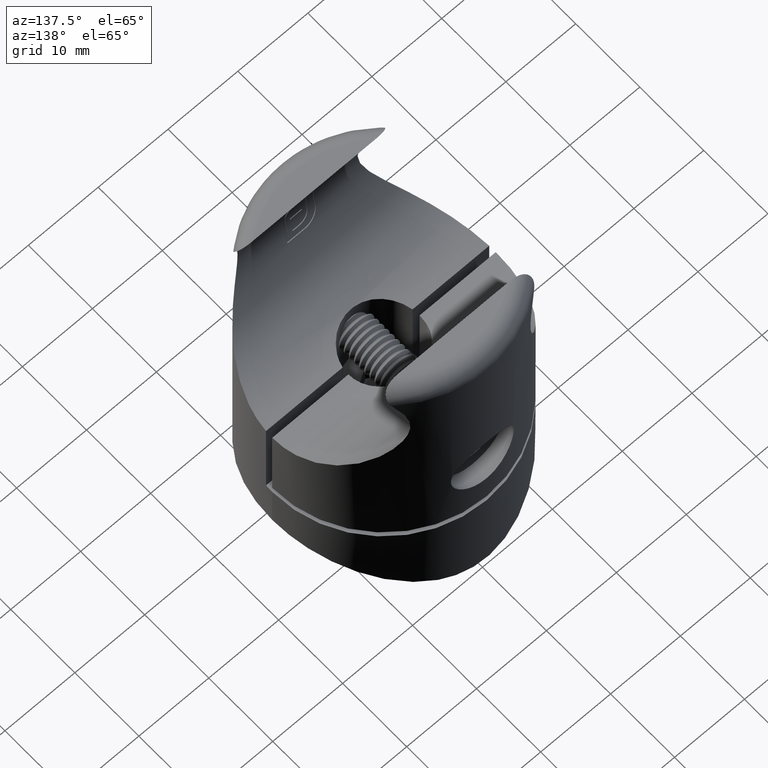
[diagram: clean part render]
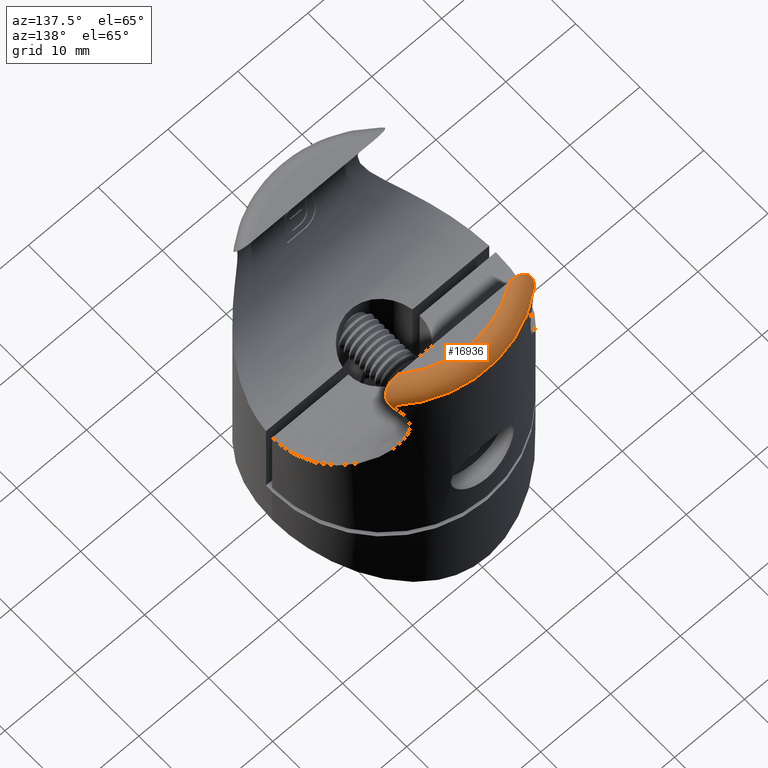
[diagram: same view with one face highlighted and labeled with its STEP entity id]
A machine part, auxiliary view. The second image highlights one B-rep face of the part: STEP entity #16936.
In plain terms, the highlighted toroidal blend (fillet) surface has major radius 13.5 mm and minor (blend) radius 2.5 mm.
Its self-contained STEP definition (entity closure, byte-faithful):
#124 = CARTESIAN_POINT ( 'NONE',  ( 10.45382344293711974, 11.75001573840879310, 33.65003368461374578 ) ) ;
#223 = CARTESIAN_POINT ( 'NONE',  ( 10.28710297064925783, 11.47149615864221417, 34.11769990449707279 ) ) ;
#1078 = VERTEX_POINT ( 'NONE', #20932 ) ;
#1876 = CARTESIAN_POINT ( 'NONE',  ( -8.380203658493739383, 10.87984127651835919, 34.99246987365486206 ) ) ;
#1926 = CARTESIAN_POINT ( 'NONE',  ( 0.000000000000000000, 0.000000000000000000, 32.50000000000000000 ) ) ;
#2012 = DIRECTION ( 'NONE',  ( 1.000000000000000000, -3.552713678800500929E-15, 0.000000000000000000 ) ) ;
#2279 = CARTESIAN_POINT ( 'NONE',  ( 10.19311573678107585, 11.38319484650541469, 34.25808178065755527 ) ) ;
#2611 = DIRECTION ( 'NONE',  ( 1.000000000000000000, 0.000000000000000000, 0.000000000000000000 ) ) ;
#3533 = EDGE_LOOP ( 'NONE', ( #6540, #27816, #12035, #17487 ) ) ;
#3596 = CIRCLE ( 'NONE', #4294, 13.50000000000000000 ) ;
#3861 = CARTESIAN_POINT ( 'NONE',  ( -9.951302772266025443, 11.21798280207964282, 34.51185936491668116 ) ) ;
#3959 = CARTESIAN_POINT ( 'NONE',  ( -8.000000000000008882, 10.87428158546576640, 35.00000000000000000 ) ) ;
#4294 = AXIS2_PLACEMENT_3D ( 'NONE', #8537, #18570, #23372 ) ;
#4468 = CARTESIAN_POINT ( 'NONE',  ( 10.13809998941080615, 11.34023300766234321, 34.32491859691874936 ) ) ;
#4563 = CARTESIAN_POINT ( 'NONE',  ( 10.46272518380615679, 11.93181473263891590, 33.31803886070136400 ) ) ;
#5855 = TOROIDAL_SURFACE ( 'NONE', #12745, 13.50000000000000000, 2.500000000000000000 ) ;
#6144 = CARTESIAN_POINT ( 'NONE',  ( -10.35006038148496721, 12.18231821499962209, 32.82024750358393561 ) ) ;
#6540 = ORIENTED_EDGE ( 'NONE', *, *, #10954, .F. ) ;
#6554 = CARTESIAN_POINT ( 'NONE',  ( 10.43939368969924608, 12.02030870588126454, 33.14785711796219658 ) ) ;
#7208 = VERTEX_POINT ( 'NONE', #27648 ) ;
#7956 = CARTESIAN_POINT ( 'NONE',  ( -10.28410146709938999, 11.46830415123831592, 34.12283697615158928 ) ) ;
#8262 = EDGE_CURVE ( 'NONE', #11859, #1078, #3596, .T. ) ;
#8537 = CARTESIAN_POINT ( 'NONE',  ( 0.000000000000000000, 0.000000000000000000, 35.00000000000000000 ) ) ;
#8633 = CARTESIAN_POINT ( 'NONE',  ( 9.956134402928984883, 11.22055002216527519, 34.50803074569692797 ) ) ;
#9014 = CARTESIAN_POINT ( 'NONE',  ( 10.42079775777834172, 11.65414308983838332, 33.81634039725183527 ) ) ;
#10130 = CARTESIAN_POINT ( 'NONE',  ( -10.41995829387336769, 11.65198373552895461, 33.82006076076333301 ) ) ;
#10168 = EDGE_CURVE ( 'NONE', #1078, #14529, #18651, .T. ) ;
#10498 = CARTESIAN_POINT ( 'NONE',  ( -9.479278755680093482, 11.03598398791453050, 34.77603524895889819 ) ) ;
#10814 = CARTESIAN_POINT ( 'NONE',  ( 9.483114144574628313, 11.03698917256719092, 34.77462169553056981 ) ) ;
#10954 = EDGE_CURVE ( 'NONE', #7208, #11859, #25935, .T. ) ;
#10992 = CARTESIAN_POINT ( 'NONE',  ( 10.34898759336921081, 12.18366177107275128, 32.81741818813670619 ) ) ;
#11701 = DIRECTION ( 'NONE',  ( 0.000000000000000000, 0.000000000000000000, 1.000000000000000000 ) ) ;
#11859 = VERTEX_POINT ( 'NONE', #26396 ) ;
#12035 = ORIENTED_EDGE ( 'NONE', *, *, #10168, .F. ) ;
#12306 = CARTESIAN_POINT ( 'NONE',  ( -10.44010292599901746, 12.01842050669649353, 33.15156294113162261 ) ) ;
#12396 = CARTESIAN_POINT ( 'NONE',  ( -8.189671559391934252, 10.87428158546576107, 35.00000000000001421 ) ) ;
#12486 = CARTESIAN_POINT ( 'NONE',  ( -9.802303870556524856, 11.14807219007156291, 34.61446998940242281 ) ) ;
#12745 = AXIS2_PLACEMENT_3D ( 'NONE', #24249, #11701, #2611 ) ;
#12981 = CARTESIAN_POINT ( 'NONE',  ( 9.305066866814756921, 10.99295583792956421, 34.83632548820178698 ) ) ;
#14474 = CARTESIAN_POINT ( 'NONE',  ( -10.19803902718557609, 12.32882800593794848, 32.50000000000000000 ) ) ;
#14529 = VERTEX_POINT ( 'NONE', #18429 ) ;
#14562 = CARTESIAN_POINT ( 'NONE',  ( -9.306404128155969957, 10.99326114737997351, 34.83589762402444023 ) ) ;
#16916 = CARTESIAN_POINT ( 'NONE',  ( -10.18970742592433787, 11.38039105875430934, 34.26247244703667860 ) ) ;
#16936 = ADVANCED_FACE ( 'NONE', ( #23402 ), #5855, .T. ) ;
#17005 = CARTESIAN_POINT ( 'NONE',  ( -8.756217974099538282, 10.90680287860542208, 34.95563774004056512 ) ) ;
#17047 = DIRECTION ( 'NONE',  ( -0.000000000000000000, -0.000000000000000000, -1.000000000000000000 ) ) ;
#17237 = EDGE_CURVE ( 'NONE', #14529, #7208, #17623, .T. ) ;
#17316 = CARTESIAN_POINT ( 'NONE',  ( 8.761121662331193605, 10.89583206529706239, 34.97139538924530910 ) ) ;
#17413 = CARTESIAN_POINT ( 'NONE',  ( 10.28256871834815911, 12.25890756508040980, 32.65673401626036565 ) ) ;
#17487 = ORIENTED_EDGE ( 'NONE', *, *, #8262, .F. ) ;
#17502 = CARTESIAN_POINT ( 'NONE',  ( 8.000000000019962698, 10.87428158546576640, 35.00000000000000000 ) ) ;
#17623 = CIRCLE ( 'NONE', #17996, 16.00000000000000000 ) ;
#17996 = AXIS2_PLACEMENT_3D ( 'NONE', #1926, #17047, #2012 ) ;
#18429 = CARTESIAN_POINT ( 'NONE',  ( -10.19803902718557609, 12.32882800593794848, 32.50000000000000000 ) ) ;
#18570 = DIRECTION ( 'NONE',  ( 0.000000000000000000, 0.000000000000000000, 1.000000000000000000 ) ) ;
#18651 = B_SPLINE_CURVE_WITH_KNOTS ( 'NONE', 3,
 ( #3959, #12396, #1876, #17005, #23165, #14562, #10498, #12486, #3861, #19012, #16916, #7956, #19106, #10130, #21267, #25233, #12306, #6144, #27393, #14474 ),
 .UNSPECIFIED., .F., .F.,
 ( 4, 2, 2, 2, 2, 2, 2, 2, 2, 4 ),
 ( 0.02071179075917638918, 0.02126964114488872834, 0.02182749153060106750, 0.02238534191631340320, 0.02294319230202574236, 0.02322211749488191021, 0.02350104268773807806, 0.02405889307345041028, 0.02461674345916274251, 0.02517459384487507473 ),
 .UNSPECIFIED. ) ;
#19012 = CARTESIAN_POINT ( 'NONE',  ( -10.13431468010807457, 11.33745329032614713, 34.32921859451531077 ) ) ;
#19106 = CARTESIAN_POINT ( 'NONE',  ( -10.32360957926437273, 11.51348498951177568, 34.04965615010198832 ) ) ;
#19589 = CARTESIAN_POINT ( 'NONE',  ( 10.32610642018201119, 11.51661938380241601, 34.04452729862232729 ) ) ;
#19678 = CARTESIAN_POINT ( 'NONE',  ( 10.19803902718557786, 12.32882800593795025, 32.50000000000000000 ) ) ;
#20932 = CARTESIAN_POINT ( 'NONE',  ( -8.000000000000008882, 10.87428158546576640, 35.00000000000000000 ) ) ;
#21267 = CARTESIAN_POINT ( 'NONE',  ( -10.45324396519880494, 11.74723290712105950, 33.65498094952530295 ) ) ;
#21662 = CARTESIAN_POINT ( 'NONE',  ( 8.377276848527850817, 10.87428158546655332, 34.99999999999894840 ) ) ;
#23165 = CARTESIAN_POINT ( 'NONE',  ( -8.944119976557894702, 10.92844122370847515, 34.92604911974655835 ) ) ;
#23372 = DIRECTION ( 'NONE',  ( 1.000000000000000000, 0.000000000000000000, 0.000000000000000000 ) ) ;
#23402 = FACE_OUTER_BOUND ( 'NONE', #3533, .T. ) ;
#23738 = CARTESIAN_POINT ( 'NONE',  ( 9.807557994757644337, 11.15023026666497152, 34.61132297989833262 ) ) ;
#24249 = CARTESIAN_POINT ( 'NONE',  ( 0.000000000000000000, 0.000000000000000000, 32.50000000000000000 ) ) ;
#25233 = CARTESIAN_POINT ( 'NONE',  ( -10.46308104471603961, 11.93024349507482285, 33.32103967405022615 ) ) ;
#25935 = B_SPLINE_CURVE_WITH_KNOTS ( 'NONE', 3,
 ( #19678, #17413, #10992, #6554, #4563, #124, #9014, #19589, #223, #2279, #4468, #8633, #23738, #10814, #12981, #17316, #21662, #17502 ),
 .UNSPECIFIED., .F., .F.,
 ( 4, 2, 2, 2, 2, 2, 2, 2, 4 ),
 ( 2.415007347416912722E-07, 0.0005680060009708534120, 0.001135770501206965176, 0.001703535001443076940, 0.001987417251561139110, 0.002271299501679201280, 0.002839064001915311743, 0.003406828502151422640, 0.004542357502623649637 ),
 .UNSPECIFIED. ) ;
#26396 = CARTESIAN_POINT ( 'NONE',  ( 8.000000000019962698, 10.87428158546576640, 35.00000000000000000 ) ) ;
#27393 = CARTESIAN_POINT ( 'NONE',  ( -10.28264552385860142, 12.25884403385194865, 32.65687642818571845 ) ) ;
#27648 = CARTESIAN_POINT ( 'NONE',  ( 10.19803902718557786, 12.32882800593795025, 32.50000000000000000 ) ) ;
#27816 = ORIENTED_EDGE ( 'NONE', *, *, #17237, .F. ) ;